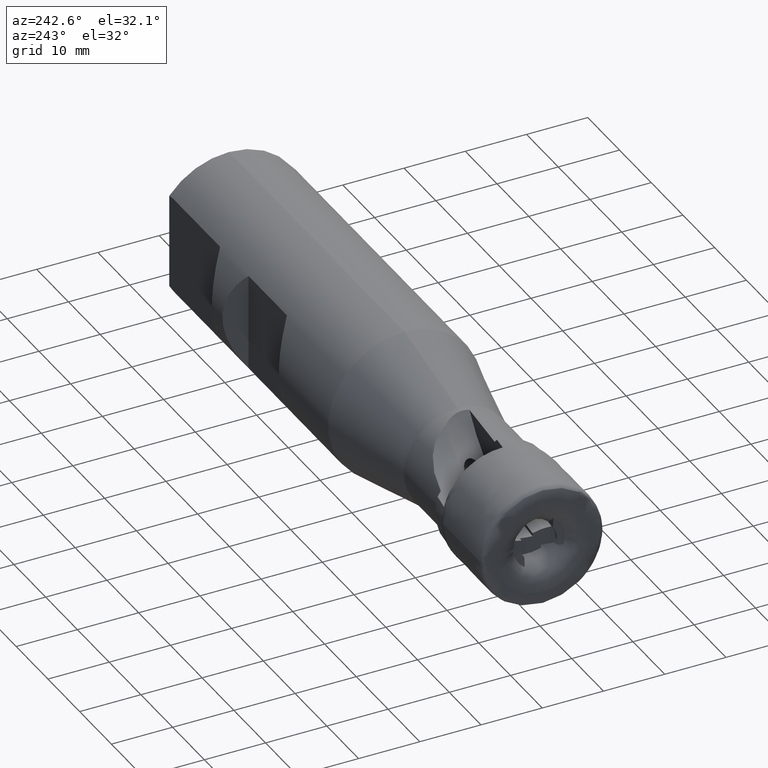
[diagram: clean part render]
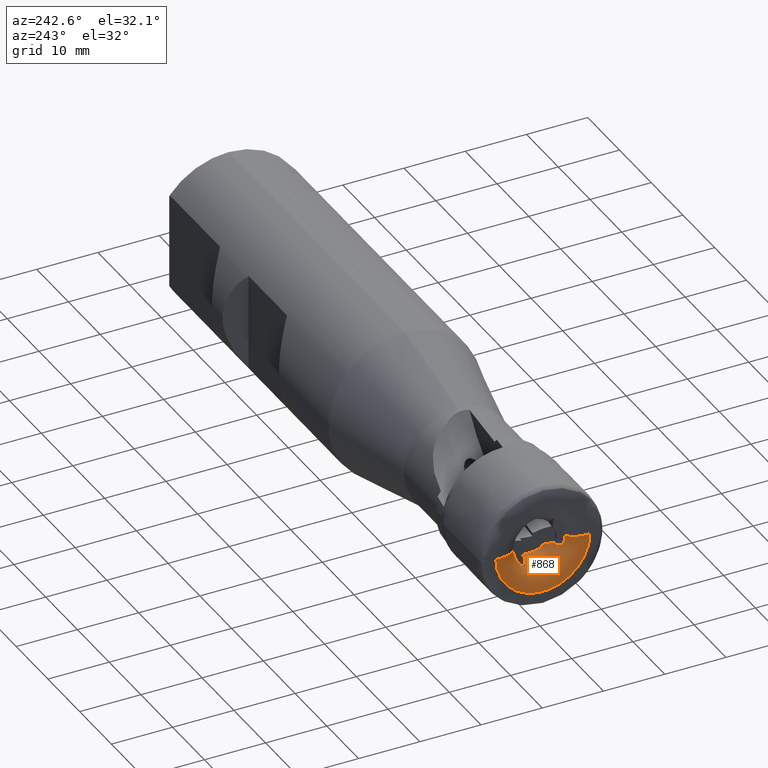
[diagram: same view with one face highlighted and labeled with its STEP entity id]
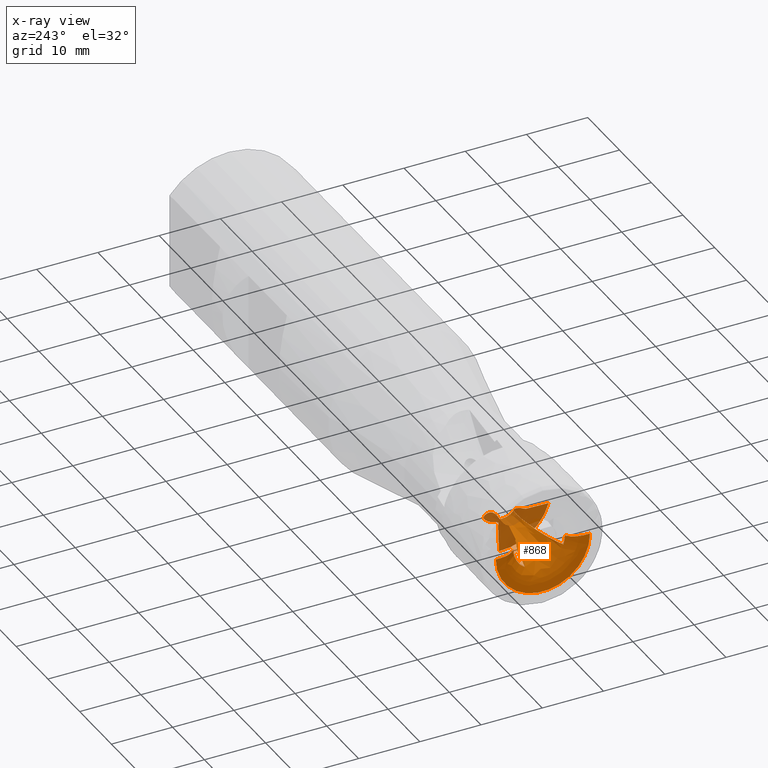
[diagram: x-ray of the same camera — body ghosted, the highlighted face saturated]
A machine part, auxiliary view. The second image highlights one B-rep face of the part: STEP entity #868.
The next image is the same camera in x-ray: the body ghosted, the highlighted face saturated — about 20% of this face is hidden behind the body in this view.
In plain terms, the highlighted face is a freeform B-spline surface patch.
Its self-contained STEP definition (entity closure, byte-faithful):
#24 = CIRCLE ( 'NONE', #679, 7.691889727590408100 ) ;
#43 = CIRCLE ( 'NONE', #684, 8.098316624820908400 ) ;
#50 = CARTESIAN_POINT ( 'NONE',  ( 12.63150438412009900, 0.3047643895715621600, -4.050989447764806100 ) ) ;
#53 = CARTESIAN_POINT ( 'NONE',  ( 12.60516006558198200, 0.3024595603511656100, -4.859684744965990800 ) ) ;
#61 = CARTESIAN_POINT ( 'NONE',  ( 12.48163906726140300, 0.2916528732907179800, -6.476588769452767700 ) ) ;
#66 = CARTESIAN_POINT ( 'NONE',  ( 12.60053920375176700, 0.3020552873252949600, -3.649286797864922200 ) ) ;
#70 = CARTESIAN_POINT ( 'NONE',  ( 12.35750454105840700, 0.2807925094958098100, -8.093447208851232600 ) ) ;
#72 = CARTESIAN_POINT ( 'NONE',  ( 12.51219689377972200, 0.2943263366930812300, -3.251698829178952800 ) ) ;
#79 = CARTESIAN_POINT ( 'NONE',  ( 12.56982024599009600, 0.2993677267658156300, -3.447239308890486200 ) ) ;
#85 = CARTESIAN_POINT ( 'NONE',  ( 12.61891691253534400, 0.3036631285054017200, -4.657150054951753000 ) ) ;
#97 = CARTESIAN_POINT ( 'NONE',  ( 12.41957827896072100, 0.2862232578649364100, -7.285018525724049200 ) ) ;
#186 = CARTESIAN_POINT ( 'NONE',  ( 12.63201546511686300, 0.3048091033648802600, -4.252755425170054300 ) ) ;
#283 = CARTESIAN_POINT ( 'NONE',  ( 12.55916270398585700, 0.2984353126594029300, -5.466047632928298800 ) ) ;
#306 = CARTESIAN_POINT ( 'NONE',  ( 12.57495076858339900, 0.2998165893307044300, -5.263960351382825000 ) ) ;
#356 = EDGE_LOOP ( 'NONE', ( #1207, #536, #1224, #1213, #1209, #1295, #1232, #1270, #1206, #1283, #1277, #1236, #1301, #1249 ) ) ;
#446 =( BOUNDED_SURFACE ( )  B_SPLINE_SURFACE ( 3, 3, ( 
 ( #2949, #2810, #2803, #2802 ),
 ( #2801, #2793, #2792, #2798 ),
 ( #2790, #2789, #2788, #2780 ),
 ( #2786, #2785, #2777, #2776 ),
 ( #2782, #2647, #2817, #2819 ),
 ( #2824, #2823, #2848, #2890 ),
 ( #2893, #2906, #2910, #2912 ),
 ( #2913, #2917, #2918, #2920 ),
 ( #2929, #2926, #2925, #2773 ) ),
 .UNSPECIFIED., .F., .F., .T. ) 
 B_SPLINE_SURFACE_WITH_KNOTS ( ( 4, 3, 1, 1, 4 ),
 ( 4, 4 ),
 ( 0.4999999999999844000, 0.5866323580774698300, 0.7244215720516465900, 0.8622107860258232400, 1.000000000000000000 ),
 ( 0.0000000000000000000, 1.000000000000000000 ),
 .UNSPECIFIED. ) 
 GEOMETRIC_REPRESENTATION_ITEM ( )  RATIONAL_B_SPLINE_SURFACE ( (
 ( 1.000000000000000000, 0.3333333333333334300, 0.3333333333333334300, 1.000000000000000000),
 ( 1.000000000000000000, 0.3333333333333334300, 0.3333333333333334300, 1.000000000000000000),
 ( 1.000000000000000000, 0.3333333333333334300, 0.3333333333333334300, 1.000000000000000000),
 ( 1.000000000000000000, 0.3333333333333334300, 0.3333333333333334300, 1.000000000000000000),
 ( 1.000000000000000000, 0.3333333333333334300, 0.3333333333333334300, 1.000000000000000000),
 ( 1.000000000000000000, 0.3333333333333334300, 0.3333333333333334300, 1.000000000000000000),
 ( 1.000000000000000000, 0.3333333333333334300, 0.3333333333333334300, 1.000000000000000000),
 ( 1.000000000000000000, 0.3333333333333334300, 0.3333333333333334300, 1.000000000000000000),
 ( 1.000000000000000000, 0.3333333333333334300, 0.3333333333333334300, 1.000000000000000000) ) ) 
 REPRESENTATION_ITEM ( '' )  SURFACE ( )  );
#456 = B_SPLINE_CURVE_WITH_KNOTS ( 'NONE', 3,
 ( #1453, #1497, #1487, #1456, #1471, #1468 ),
 .UNSPECIFIED., .F., .F.,
 ( 4, 2, 4 ),
 ( 0.0005938693669782327600, 0.001926518084082464400, 0.003259166801186696000 ),
 .UNSPECIFIED. ) ;
#462 = B_SPLINE_CURVE_WITH_KNOTS ( 'NONE', 3,
 ( #2267, #2255, #2289, #2219, #2230, #2309, #2365, #2221, #2224, #2174, #2168, #2142, #2284, #2264, #2182, #2374, #2245, #2330, #2299, #2318 ),
 .UNSPECIFIED., .F., .F.,
 ( 4, 2, 2, 2, 2, 2, 2, 2, 2, 4 ),
 ( 9.697399036122160600E-019, 0.0007244383642552741600, 0.001448876728510547000, 0.001811095910638184200, 0.002173315092765821800, 0.002897753457021094900, 0.003259972639148729000, 0.003622191821276363200, 0.004346630185531630600, 0.005795506914042167200 ),
 .UNSPECIFIED. ) ;
#466 = B_SPLINE_CURVE_WITH_KNOTS ( 'NONE', 3,
 ( #2353, #2333, #2138, #2268 ),
 .UNSPECIFIED., .F., .F.,
 ( 4, 4 ),
 ( 0.8894201429057745400, 1.000000000000000000 ),
 .UNSPECIFIED. ) ;
#475 = B_SPLINE_CURVE_WITH_KNOTS ( 'NONE', 3,
 ( #70, #97, #61, #283, #306, #53, #85, #186, #50, #66, #79, #72 ),
 .UNSPECIFIED., .F., .F.,
 ( 4, 2, 2, 2, 2, 4 ),
 ( 0.001571928177692240300, 0.004003785974425230800, 0.004611750423608479400, 0.005219714872791728900, 0.005827679321974977600, 0.006435643771158226300 ),
 .UNSPECIFIED. ) ;
#498 = B_SPLINE_CURVE_WITH_KNOTS ( 'NONE', 3,
 ( #1706, #1576, #1693, #1703 ),
 .UNSPECIFIED., .F., .F.,
 ( 4, 4 ),
 ( 0.8894201429057745400, 1.000000000000000000 ),
 .UNSPECIFIED. ) ;
#536 = ORIENTED_EDGE ( 'NONE', *, *, #1318, .T. ) ;
#632 = VERTEX_POINT ( 'NONE', #2615 ) ;
#644 = AXIS2_PLACEMENT_3D ( 'NONE', #1385, #1715, #1370 ) ;
#651 = AXIS2_PLACEMENT_3D ( 'NONE', #1633, #1641, #1637 ) ;
#679 = AXIS2_PLACEMENT_3D ( 'NONE', #3213, #3200, #3171 ) ;
#684 = AXIS2_PLACEMENT_3D ( 'NONE', #970, #968, #980 ) ;
#868 = ADVANCED_FACE ( 'NONE', ( #881 ), #446, .T. ) ;
#881 = FACE_OUTER_BOUND ( 'NONE', #356, .T. ) ;
#911 = CIRCLE ( 'NONE', #644, 4.210217411399218800 ) ;
#968 = DIRECTION ( 'NONE',  ( -1.000000000000000000, -0.0000000000000000000, -0.0000000000000000000 ) ) ;
#969 = CARTESIAN_POINT ( 'NONE',  ( 7.384632379226665900, -1.581969470210173600, -1.017467082909026400 ) ) ;
#970 = CARTESIAN_POINT ( 'NONE',  ( 12.35750454105840400, 0.0000000000000000000, 0.0000000000000000000 ) ) ;
#980 = DIRECTION ( 'NONE',  ( 0.0000000000000000000, -1.000000000000000000, 0.0000000000000000000 ) ) ;
#982 = CARTESIAN_POINT ( 'NONE',  ( 5.898183621017731900, -1.834008517767833800, -1.035691400926223500 ) ) ;
#984 = CARTESIAN_POINT ( 'NONE',  ( 0.3181918467754043500, 2.339330628486634600, -3.500494659598201600 ) ) ;
#985 = CARTESIAN_POINT ( 'NONE',  ( 1.935181347792122000, -3.008785598751591500, -1.199969699177090700 ) ) ;
#991 = CARTESIAN_POINT ( 'NONE',  ( 0.6045002155625467400, -3.720005743110065900, -1.361863652185894000 ) ) ;
#993 = CARTESIAN_POINT ( 'NONE',  ( 3.700769070778301600, -2.375823589630735800, -1.095773799559198700 ) ) ;
#996 = CARTESIAN_POINT ( 'NONE',  ( 1.590923102424235600, -3.159927447999475900, -1.229545600667154600 ) ) ;
#1003 = CARTESIAN_POINT ( 'NONE',  ( 8.889052101954995100, -1.452723564867003600, -1.017997851424185900 ) ) ;
#1010 = CARTESIAN_POINT ( 'NONE',  ( 8.889052101954995100, -1.452723564867003600, -1.017997851424185900 ) ) ;
#1013 = CARTESIAN_POINT ( 'NONE',  ( 8.132454445774842000, -1.487345903987078200, -1.013471060071315300 ) ) ;
#1017 = CARTESIAN_POINT ( 'NONE',  ( 2.982736231926859500, -2.596327502654225000, -1.125749563461409900 ) ) ;
#1018 = CARTESIAN_POINT ( 'NONE',  ( 0.9223934676221436900, -3.517181233906589100, -1.310945592651565800 ) ) ;
#1034 = CARTESIAN_POINT ( 'NONE',  ( 5.157760510560522400, -1.993807458330515200, -1.050297334160977600 ) ) ;
#1057 = CARTESIAN_POINT ( 'NONE',  ( 12.60916826578095300, -4.214379036515368600, -2.291082953356612200 ) ) ;
#1060 = CARTESIAN_POINT ( 'NONE',  ( -0.9000000000000127900, 7.691889727590409900, 1.083315806288077500E-015 ) ) ;
#1073 = CARTESIAN_POINT ( 'NONE',  ( 0.3181918467756849600, 4.210217411399218800, 5.156029276583444000E-016 ) ) ;
#1098 = CARTESIAN_POINT ( 'NONE',  ( 8.867872609896565500, 0.5123365115192871600, -1.699073271127900600 ) ) ;
#1117 = CARTESIAN_POINT ( 'NONE',  ( 12.35750454105836800, -7.793913043053112900, -2.199466215513584000 ) ) ;
#1128 = CARTESIAN_POINT ( 'NONE',  ( 0.3181918467756849600, -4.210217411399218800, 0.0000000000000000000 ) ) ;
#1133 = CARTESIAN_POINT ( 'NONE',  ( -0.9000000000000130100, -7.691889727590408100, 0.0000000000000000000 ) ) ;
#1175 = CARTESIAN_POINT ( 'NONE',  ( 12.35750454105840700, 0.2807925094958098100, -8.093447208851232600 ) ) ;
#1180 = CARTESIAN_POINT ( 'NONE',  ( 5.443635721345316400, 1.231828114857688800, -1.829085718615560000 ) ) ;
#1186 = CARTESIAN_POINT ( 'NONE',  ( 12.51219689377972200, 0.2943263366930812300, -3.251698829178952800 ) ) ;
#1195 = CARTESIAN_POINT ( 'NONE',  ( 0.3181918467756865200, -3.958794370696016300, -1.433135646683431500 ) ) ;
#1200 = CARTESIAN_POINT ( 'NONE',  ( 2.347293246295386800, 2.516853998089210200, -1.772009601427061400 ) ) ;
#1206 = ORIENTED_EDGE ( 'NONE', *, *, #1858, .F. ) ;
#1207 = ORIENTED_EDGE ( 'NONE', *, *, #1361, .T. ) ;
#1209 = ORIENTED_EDGE ( 'NONE', *, *, #1319, .T. ) ;
#1213 = ORIENTED_EDGE ( 'NONE', *, *, #1513, .F. ) ;
#1224 = ORIENTED_EDGE ( 'NONE', *, *, #1831, .T. ) ;
#1232 = ORIENTED_EDGE ( 'NONE', *, *, #1530, .F. ) ;
#1236 = ORIENTED_EDGE ( 'NONE', *, *, #1821, .T. ) ;
#1249 = ORIENTED_EDGE ( 'NONE', *, *, #1356, .F. ) ;
#1270 = ORIENTED_EDGE ( 'NONE', *, *, #1788, .F. ) ;
#1277 = ORIENTED_EDGE ( 'NONE', *, *, #1823, .F. ) ;
#1283 = ORIENTED_EDGE ( 'NONE', *, *, #1682, .T. ) ;
#1295 = ORIENTED_EDGE ( 'NONE', *, *, #1848, .T. ) ;
#1301 = ORIENTED_EDGE ( 'NONE', *, *, #1820, .F. ) ;
#1318 = EDGE_CURVE ( 'NONE', #1974, #1947, #498, .T. ) ;
#1319 = EDGE_CURVE ( 'NONE', #1938, #632, #911, .T. ) ;
#1356 = EDGE_CURVE ( 'NONE', #2003, #1871, #456, .T. ) ;
#1361 = EDGE_CURVE ( 'NONE', #2003, #1974, #2072, .T. ) ;
#1370 = DIRECTION ( 'NONE',  ( 0.0000000000000000000, 0.0000000000000000000, 1.000000000000000000 ) ) ;
#1385 = CARTESIAN_POINT ( 'NONE',  ( 0.3181918467756849600, 0.0000000000000000000, 0.0000000000000000000 ) ) ;
#1453 = CARTESIAN_POINT ( 'NONE',  ( 0.3181918467754043500, 2.339330628486634600, -3.500494659598201600 ) ) ;
#1456 = CARTESIAN_POINT ( 'NONE',  ( 1.639215418102388100, 2.454905215228265500, -2.314711260717254000 ) ) ;
#1468 = CARTESIAN_POINT ( 'NONE',  ( 2.347293246295386800, 2.516853998089210200, -1.772009601427061400 ) ) ;
#1471 = CARTESIAN_POINT ( 'NONE',  ( 1.997987690826629200, 2.486293721879069300, -2.049060303985269700 ) ) ;
#1487 = CARTESIAN_POINT ( 'NONE',  ( 0.9484153359490080600, 2.394468039277072500, -2.876723156077689600 ) ) ;
#1497 = CARTESIAN_POINT ( 'NONE',  ( 0.6164074482322768900, 2.365421112900674100, -3.171382795774014200 ) ) ;
#1513 = EDGE_CURVE ( 'NONE', #1938, #1941, #466, .T. ) ;
#1530 = EDGE_CURVE ( 'NONE', #1950, #1993, #462, .T. ) ;
#1576 = CARTESIAN_POINT ( 'NONE',  ( -0.8770546920445750900, 5.248834214089596300, 6.427968019539935700E-016 ) ) ;
#1633 = CARTESIAN_POINT ( 'NONE',  ( 0.3181918467756849600, 0.0000000000000000000, 0.0000000000000000000 ) ) ;
#1637 = DIRECTION ( 'NONE',  ( 0.0000000000000000000, 0.0000000000000000000, 1.000000000000000000 ) ) ;
#1641 = DIRECTION ( 'NONE',  ( 1.000000000000000000, 0.0000000000000000000, 0.0000000000000000000 ) ) ;
#1682 = EDGE_CURVE ( 'NONE', #1898, #1887, #475, .T. ) ;
#1693 = CARTESIAN_POINT ( 'NONE',  ( -0.8885273460222940000, 6.470361970840000900, 7.923908076913968800E-016 ) ) ;
#1703 = CARTESIAN_POINT ( 'NONE',  ( -0.9000000000000127900, 7.691889727590409900, 1.083315806288077500E-015 ) ) ;
#1706 = CARTESIAN_POINT ( 'NONE',  ( 0.3181918467756849600, 4.210217411399218800, 5.156029276583444000E-016 ) ) ;
#1715 = DIRECTION ( 'NONE',  ( 1.000000000000000000, 0.0000000000000000000, 0.0000000000000000000 ) ) ;
#1788 = EDGE_CURVE ( 'NONE', #1948, #1950, #2967, .T. ) ;
#1820 = EDGE_CURVE ( 'NONE', #1871, #1895, #2999, .T. ) ;
#1821 = EDGE_CURVE ( 'NONE', #1973, #1895, #2983, .T. ) ;
#1823 = EDGE_CURVE ( 'NONE', #1973, #1887, #3003, .T. ) ;
#1831 = EDGE_CURVE ( 'NONE', #1947, #1941, #24, .T. ) ;
#1848 = EDGE_CURVE ( 'NONE', #632, #1993, #2984, .T. ) ;
#1858 = EDGE_CURVE ( 'NONE', #1898, #1948, #43, .T. ) ;
#1871 = VERTEX_POINT ( 'NONE', #1200 ) ;
#1887 = VERTEX_POINT ( 'NONE', #1186 ) ;
#1895 = VERTEX_POINT ( 'NONE', #1180 ) ;
#1898 = VERTEX_POINT ( 'NONE', #1175 ) ;
#1938 = VERTEX_POINT ( 'NONE', #1128 ) ;
#1941 = VERTEX_POINT ( 'NONE', #1133 ) ;
#1947 = VERTEX_POINT ( 'NONE', #1060 ) ;
#1948 = VERTEX_POINT ( 'NONE', #1117 ) ;
#1950 = VERTEX_POINT ( 'NONE', #1057 ) ;
#1973 = VERTEX_POINT ( 'NONE', #1098 ) ;
#1974 = VERTEX_POINT ( 'NONE', #1073 ) ;
#1993 = VERTEX_POINT ( 'NONE', #1003 ) ;
#2003 = VERTEX_POINT ( 'NONE', #984 ) ;
#2072 = CIRCLE ( 'NONE', #651, 4.210217411399218800 ) ;
#2138 = CARTESIAN_POINT ( 'NONE',  ( -0.8885273460222940000, -6.470361970840000900, 0.0000000000000000000 ) ) ;
#2142 = CARTESIAN_POINT ( 'NONE',  ( 11.61781441983738400, -1.746738921919192700, -1.284518160805932800 ) ) ;
#2168 = CARTESIAN_POINT ( 'NONE',  ( 11.92744849018349400, -1.919190032767716700, -1.365895304765784900 ) ) ;
#2174 = CARTESIAN_POINT ( 'NONE',  ( 12.11120007477914700, -2.074402136810824500, -1.430458424049142500 ) ) ;
#2182 = CARTESIAN_POINT ( 'NONE',  ( 11.16871017065589000, -1.583969919835212600, -1.194164906570404100 ) ) ;
#2219 = CARTESIAN_POINT ( 'NONE',  ( 12.62011916880243600, -3.328143474946100500, -1.905198170040280500 ) ) ;
#2221 = CARTESIAN_POINT ( 'NONE',  ( 12.37664408432248000, -2.452124258530768800, -1.575178981686853600 ) ) ;
#2224 = CARTESIAN_POINT ( 'NONE',  ( 12.31754927691522800, -2.351037346021852800, -1.537200924355037100 ) ) ;
#2230 = CARTESIAN_POINT ( 'NONE',  ( 12.59618053598197900, -3.100454690584625500, -1.817578420865452600 ) ) ;
#2245 = CARTESIAN_POINT ( 'NONE',  ( 10.58019003085561700, -1.473230738299498500, -1.110482580897618000 ) ) ;
#2255 = CARTESIAN_POINT ( 'NONE',  ( 12.62436363232116000, -3.995911501530622800, -2.186447459446199100 ) ) ;
#2264 = CARTESIAN_POINT ( 'NONE',  ( 11.28325172159801100, -1.616630172331461600, -1.214351523308845100 ) ) ;
#2267 = CARTESIAN_POINT ( 'NONE',  ( 12.60916826578095300, -4.214379036515368600, -2.291082953356612200 ) ) ;
#2268 = CARTESIAN_POINT ( 'NONE',  ( -0.9000000000000130100, -7.691889727590408100, 0.0000000000000000000 ) ) ;
#2284 = CARTESIAN_POINT ( 'NONE',  ( 11.50793555404965000, -1.697954574427071700, -1.259523952456381500 ) ) ;
#2289 = CARTESIAN_POINT ( 'NONE',  ( 12.63411884968600200, -3.774493166801028600, -2.089167055818343500 ) ) ;
#2299 = CARTESIAN_POINT ( 'NONE',  ( 9.373812626721427700, -1.430540647508751200, -1.020898216940526300 ) ) ;
#2309 = CARTESIAN_POINT ( 'NONE',  ( 12.50970714366677300, -2.769526214176968100, -1.693356982216295500 ) ) ;
#2318 = CARTESIAN_POINT ( 'NONE',  ( 8.889052101954995100, -1.452723564867003600, -1.017997851424185900 ) ) ;
#2330 = CARTESIAN_POINT ( 'NONE',  ( 9.857437975456424100, -1.420523659661966100, -1.042378184554933600 ) ) ;
#2333 = CARTESIAN_POINT ( 'NONE',  ( -0.8770546920445750900, -5.248834214089596300, 0.0000000000000000000 ) ) ;
#2353 = CARTESIAN_POINT ( 'NONE',  ( 0.3181918467756849600, -4.210217411399218800, 0.0000000000000000000 ) ) ;
#2365 = CARTESIAN_POINT ( 'NONE',  ( 12.47256738453451200, -2.661528996362074300, -1.653300527599332400 ) ) ;
#2374 = CARTESIAN_POINT ( 'NONE',  ( 10.82017278694364000, -1.503564103033474300, -1.139401868388064500 ) ) ;
#2615 = CARTESIAN_POINT ( 'NONE',  ( 0.3181918467756865200, -3.958794370696016300, -1.433135646683431500 ) ) ;
#2647 = CARTESIAN_POINT ( 'NONE',  ( 12.69412237501588200, 3.717969846964118900, -7.435939693928234300 ) ) ;
#2773 = CARTESIAN_POINT ( 'NONE',  ( -0.9000000000000130100, -7.691889727590409000, -1.883969626857600400E-015 ) ) ;
#2776 = CARTESIAN_POINT ( 'NONE',  ( 12.57749198536916800, -5.235659939265392600, -1.282366837209077900E-015 ) ) ;
#2777 = CARTESIAN_POINT ( 'NONE',  ( 12.57749198536916800, -5.235659939265390900, -10.47131987853078700 ) ) ;
#2780 = CARTESIAN_POINT ( 'NONE',  ( 12.50416283726556400, -6.189878834450737200, -1.516083060344008600E-015 ) ) ;
#2782 = CARTESIAN_POINT ( 'NONE',  ( 12.69412237501588200, 3.717969846964118500, 4.553199872410981900E-016 ) ) ;
#2785 = CARTESIAN_POINT ( 'NONE',  ( 12.57749198536916800, 5.235659939265393500, -10.47131987853078500 ) ) ;
#2786 = CARTESIAN_POINT ( 'NONE',  ( 12.57749198536916800, 5.235659939265392600, 6.411834186045389500E-016 ) ) ;
#2788 = CARTESIAN_POINT ( 'NONE',  ( 12.50416283726556800, -6.189878834450735400, -12.37975766890147400 ) ) ;
#2789 = CARTESIAN_POINT ( 'NONE',  ( 12.50416283726556800, 6.189878834450738100, -12.37975766890147100 ) ) ;
#2790 = CARTESIAN_POINT ( 'NONE',  ( 12.50416283726556400, 6.189878834450737200, 7.580415301720043200E-016 ) ) ;
#2792 = CARTESIAN_POINT ( 'NONE',  ( 12.43083368916196600, -7.144097729636077300, -14.28819545927216000 ) ) ;
#2793 = CARTESIAN_POINT ( 'NONE',  ( 12.43083368916196600, 7.144097729636082600, -14.28819545927215600 ) ) ;
#2798 = CARTESIAN_POINT ( 'NONE',  ( 12.43083368916196600, -7.144097729636080800, -1.749799283478940000E-015 ) ) ;
#2801 = CARTESIAN_POINT ( 'NONE',  ( 12.43083368916196600, 7.144097729636080800, 8.748996417394699900E-016 ) ) ;
#2802 = CARTESIAN_POINT ( 'NONE',  ( 12.35750454105836800, -8.098316624821425300, -1.983515506613870900E-015 ) ) ;
#2803 = CARTESIAN_POINT ( 'NONE',  ( 12.35750454105836800, -8.098316624821421800, -16.19663324964285100 ) ) ;
#2810 = CARTESIAN_POINT ( 'NONE',  ( 12.35750454105836800, 8.098316624821427100, -16.19663324964284700 ) ) ;
#2817 = CARTESIAN_POINT ( 'NONE',  ( 12.69412237501588200, -3.717969846964116300, -7.435939693928235200 ) ) ;
#2819 = CARTESIAN_POINT ( 'NONE',  ( 12.69412237501588200, -3.717969846964118500, -9.106399744821963800E-016 ) ) ;
#2823 = CARTESIAN_POINT ( 'NONE',  ( 12.92738315430931500, 0.6825896623615754800, -1.365179324723150300 ) ) ;
#2824 = CARTESIAN_POINT ( 'NONE',  ( 12.92738315430931500, 0.6825896623615752600, 8.359312451421756700E-017 ) ) ;
#2848 = CARTESIAN_POINT ( 'NONE',  ( 12.92738315430931500, -0.6825896623615749200, -1.365179324723150500 ) ) ;
#2890 = CARTESIAN_POINT ( 'NONE',  ( 12.92738315430931500, -0.6825896623615752600, -1.671862490284351300E-016 ) ) ;
#2893 = CARTESIAN_POINT ( 'NONE',  ( -0.8571131303116051900, 3.125596538039871100, 3.827751795736576200E-016 ) ) ;
#2906 = CARTESIAN_POINT ( 'NONE',  ( -0.8571131303116050800, 3.125596538039872000, -6.251193076079740500 ) ) ;
#2910 = CARTESIAN_POINT ( 'NONE',  ( -0.8571131303116050800, -3.125596538039869400, -6.251193076079741400 ) ) ;
#2912 = CARTESIAN_POINT ( 'NONE',  ( -0.8571131303116051900, -3.125596538039871100, -7.655503591473152400E-016 ) ) ;
#2913 = CARTESIAN_POINT ( 'NONE',  ( -0.8857043767705438100, 6.169791997740228200, 7.555816021437523400E-016 ) ) ;
#2917 = CARTESIAN_POINT ( 'NONE',  ( -0.8857043767705438100, 6.169791997740230000, -12.33958399548045500 ) ) ;
#2918 = CARTESIAN_POINT ( 'NONE',  ( -0.8857043767705438100, -6.169791997740226500, -12.33958399548045500 ) ) ;
#2920 = CARTESIAN_POINT ( 'NONE',  ( -0.8857043767705438100, -6.169791997740228200, -1.511163204287504700E-015 ) ) ;
#2925 = CARTESIAN_POINT ( 'NONE',  ( -0.9000000000000130100, -7.691889727590406300, -15.38377945518081800 ) ) ;
#2926 = CARTESIAN_POINT ( 'NONE',  ( -0.9000000000000130100, 7.691889727590410800, -15.38377945518081600 ) ) ;
#2929 = CARTESIAN_POINT ( 'NONE',  ( -0.9000000000000130100, 7.691889727590409000, 9.419848134288001900E-016 ) ) ;
#2949 = CARTESIAN_POINT ( 'NONE',  ( 12.35750454105836800, 8.098316624821425300, 9.917577533069354600E-016 ) ) ;
#2967 = B_SPLINE_CURVE_WITH_KNOTS ( 'NONE', 3,
 ( #3138, #3154, #3192, #3191, #3203, #3196, #3195, #3205 ),
 .UNSPECIFIED., .F., .F.,
 ( 4, 2, 2, 4 ),
 ( 0.001711809281691077000, 0.003481850491442643800, 0.004366871096318425900, 0.005251891701194208500 ),
 .UNSPECIFIED. ) ;
#2983 = B_SPLINE_CURVE_WITH_KNOTS ( 'NONE', 3,
 ( #3202, #3118, #3050, #3051, #3058, #3059, #3055, #3066 ),
 .UNSPECIFIED., .F., .F.,
 ( 4, 2, 2, 4 ),
 ( 0.0002632550930423316500, 0.001138515210639423500, 0.002013775328236512800, 0.003764295563430691800 ),
 .UNSPECIFIED. ) ;
#2984 = B_SPLINE_CURVE_WITH_KNOTS ( 'NONE', 3,
 ( #1195, #991, #1018, #996, #985, #1017, #993, #1034, #982, #969, #1013, #1010 ),
 .UNSPECIFIED., .F., .F.,
 ( 4, 2, 2, 2, 2, 4 ),
 ( 0.0003430605235906119600, 0.001478685154098882900, 0.002614309784607154000, 0.004885559045623696000, 0.007156808306640238100, 0.009428057567656781100 ),
 .UNSPECIFIED. ) ;
#2999 = B_SPLINE_CURVE_WITH_KNOTS ( 'NONE', 3,
 ( #3025, #3031, #3043, #3048 ),
 .UNSPECIFIED., .F., .F.,
 ( 4, 4 ),
 ( 0.001160802646552146300, 0.004513029725890738100 ),
 .UNSPECIFIED. ) ;
#3003 = B_SPLINE_CURVE_WITH_KNOTS ( 'NONE', 3,
 ( #3067, #3072, #3085, #3080, #3081, #3092, #3087, #3088, #3100, #3094, #3090, #3102, #3103, #3104, #3113, #3111, #3106, #3039, #3038, #3109, #3119, #3035, #3034, #3243, #3246, #3257, #3112, #3008, #3011, #3042, #3041, #3013, #3098, #3107, #3022, #3084, #3086, #3096, #3070, #3071 ),
 .UNSPECIFIED., .F., .F.,
 ( 4, 2, 2, 2, 2, 2, 2, 2, 2, 2, 2, 2, 2, 2, 2, 2, 2, 2, 2, 4 ),
 ( 0.002356413581879394800, 0.002903660433422120900, 0.003450907284964846900, 0.003724530710736210500, 0.003998154136507573800, 0.004545400988050300200, 0.005092647839593026700, 0.005639894691135752300, 0.006187141542678478700, 0.006734388394221205200, 0.007281635245763931600, 0.007555258671535293100, 0.007828882097306658100, 0.008102505523078019600, 0.008376128948849382800, 0.008649752374620744300, 0.008923375800392107500, 0.009470622651934830500, 0.01001786950347755700, 0.01111236320656300500 ),
 .UNSPECIFIED. ) ;
#3008 = CARTESIAN_POINT ( 'NONE',  ( 12.51990049852320800, 2.734525138494722000, -1.831161119195315400 ) ) ;
#3011 = CARTESIAN_POINT ( 'NONE',  ( 12.52589919002028800, 2.701653839061543200, -1.920225967261415900 ) ) ;
#3013 = CARTESIAN_POINT ( 'NONE',  ( 12.52936042690723700, 2.421339525777259600, -2.282460959206208200 ) ) ;
#3022 = CARTESIAN_POINT ( 'NONE',  ( 12.51543725699527300, 1.985549021112309900, -2.611964209493185400 ) ) ;
#3025 = CARTESIAN_POINT ( 'NONE',  ( 2.347293246295386800, 2.516853998089210200, -1.772009601427061400 ) ) ;
#3031 = CARTESIAN_POINT ( 'NONE',  ( 3.353719789341322900, 2.029915131383015000, -1.790445562790675500 ) ) ;
#3034 = CARTESIAN_POINT ( 'NONE',  ( 12.31248482847249900, 2.551611861884720300, -1.166844475955016700 ) ) ;
#3035 = CARTESIAN_POINT ( 'NONE',  ( 12.26954205697393300, 2.509549766677323700, -1.097817758142540100 ) ) ;
#3038 = CARTESIAN_POINT ( 'NONE',  ( 11.74136811574736200, 2.160500769095111500, -0.5762756432072435600 ) ) ;
#3039 = CARTESIAN_POINT ( 'NONE',  ( 11.58951453152163000, 2.094619208761302300, -0.4893918934572631900 ) ) ;
#3041 = CARTESIAN_POINT ( 'NONE',  ( 12.53137298674646500, 2.549386973314445600, -2.150352619477145000 ) ) ;
#3042 = CARTESIAN_POINT ( 'NONE',  ( 12.53151210156956500, 2.608551171608510400, -2.078874754565460700 ) ) ;
#3043 = CARTESIAN_POINT ( 'NONE',  ( 4.402215950858564300, 1.638942722996690200, -1.809846825797462900 ) ) ;
#3048 = CARTESIAN_POINT ( 'NONE',  ( 5.443635721345316400, 1.231828114857688800, -1.829085718615560000 ) ) ;
#3050 = CARTESIAN_POINT ( 'NONE',  ( 8.285989327848504600, 0.5762697935958678300, -1.709946889676306400 ) ) ;
#3051 = CARTESIAN_POINT ( 'NONE',  ( 7.711043902960661900, 0.6750211158669555700, -1.727534509687610000 ) ) ;
#3055 = CARTESIAN_POINT ( 'NONE',  ( 6.005746317123945100, 1.071308360251126900, -1.799585934169538800 ) ) ;
#3058 = CARTESIAN_POINT ( 'NONE',  ( 7.425363356124681700, 0.7333908644753095500, -1.738062659595873500 ) ) ;
#3059 = CARTESIAN_POINT ( 'NONE',  ( 6.571422566063209700, 0.9240619088484567400, -1.772647908263297100 ) ) ;
#3066 = CARTESIAN_POINT ( 'NONE',  ( 5.443635721345316400, 1.231828114857688800, -1.829085718615560000 ) ) ;
#3067 = CARTESIAN_POINT ( 'NONE',  ( 8.867872609896565500, 0.5123365115192871600, -1.699073271127900600 ) ) ;
#3070 = CARTESIAN_POINT ( 'NONE',  ( 12.50332523698614300, 0.6547157761021029600, -3.188902760334608300 ) ) ;
#3071 = CARTESIAN_POINT ( 'NONE',  ( 12.51219689377972200, 0.2943263366930812300, -3.251698829178952800 ) ) ;
#3072 = CARTESIAN_POINT ( 'NONE',  ( 8.860843364324877000, 0.6875447058733091800, -1.646501834983681100 ) ) ;
#3080 = CARTESIAN_POINT ( 'NONE',  ( 8.938852010687014600, 1.151548728506389200, -1.359084392936126900 ) ) ;
#3081 = CARTESIAN_POINT ( 'NONE',  ( 8.994337943933798500, 1.280586752396539500, -1.233463344586291500 ) ) ;
#3084 = CARTESIAN_POINT ( 'NONE',  ( 12.50684161524228700, 1.666954485795368600, -2.792356634161138100 ) ) ;
#3085 = CARTESIAN_POINT ( 'NONE',  ( 8.872864302319973400, 0.8565411073111395300, -1.564355000347281900 ) ) ;
#3086 = CARTESIAN_POINT ( 'NONE',  ( 12.50358452450673300, 1.503593552643085700, -2.871737857481328600 ) ) ;
#3087 = CARTESIAN_POINT ( 'NONE',  ( 9.165203379468630700, 1.476579340293723300, -0.9736071750995508600 ) ) ;
#3088 = CARTESIAN_POINT ( 'NONE',  ( 9.273513068800832900, 1.552018271733517100, -0.8460196471381954400 ) ) ;
#3090 = CARTESIAN_POINT ( 'NONE',  ( 9.686357202453070400, 1.696091703924870600, -0.5118789734545626800 ) ) ;
#3092 = CARTESIAN_POINT ( 'NONE',  ( 9.116916089233637200, 1.431974869945789900, -1.040060695612414800 ) ) ;
#3094 = CARTESIAN_POINT ( 'NONE',  ( 9.532701487726866300, 1.663089808117094400, -0.6102050367611237000 ) ) ;
#3096 = CARTESIAN_POINT ( 'NONE',  ( 12.49892076099240300, 1.003285925404713100, -3.082679561339630100 ) ) ;
#3098 = CARTESIAN_POINT ( 'NONE',  ( 12.52739992060790500, 2.352782531322157800, -2.342561922209035700 ) ) ;
#3100 = CARTESIAN_POINT ( 'NONE',  ( 9.333649499252249600, 1.583296436519089100, -0.7844881438643341900 ) ) ;
#3102 = CARTESIAN_POINT ( 'NONE',  ( 10.02103099342563700, 1.750890655853990100, -0.3637486761611749600 ) ) ;
#3103 = CARTESIAN_POINT ( 'NONE',  ( 10.19637525673140700, 1.772129945793738300, -0.3154528886461701600 ) ) ;
#3104 = CARTESIAN_POINT ( 'NONE',  ( 10.55888368921970200, 1.824509433193027200, -0.2667190076354580300 ) ) ;
#3106 = CARTESIAN_POINT ( 'NONE',  ( 11.26807653974943000, 1.981895067802504500, -0.3585788014346842900 ) ) ;
#3107 = CARTESIAN_POINT ( 'NONE',  ( 12.52080286882009300, 2.139096853853763100, -2.512375668592635500 ) ) ;
#3109 = CARTESIAN_POINT ( 'NONE',  ( 12.00726230525226700, 2.304537484777935000, -0.7803801461632595700 ) ) ;
#3111 = CARTESIAN_POINT ( 'NONE',  ( 11.09480055113079400, 1.933686137246720400, -0.3127959656085794700 ) ) ;
#3112 = CARTESIAN_POINT ( 'NONE',  ( 12.49367051648388100, 2.748536853129465400, -1.648291026045768200 ) ) ;
#3113 = CARTESIAN_POINT ( 'NONE',  ( 10.73941842657114300, 1.854782482870851500, -0.2671021636212338500 ) ) ;
#3118 = CARTESIAN_POINT ( 'NONE',  ( 8.575227946766130300, 0.5357564369387199900, -1.702862007711708900 ) ) ;
#3119 = CARTESIAN_POINT ( 'NONE',  ( 12.12472917084032500, 2.384859103411681100, -0.8995532007929709600 ) ) ;
#3138 = CARTESIAN_POINT ( 'NONE',  ( 12.35750454105836800, -7.793913043053112900, -2.199466215513584000 ) ) ;
#3154 = CARTESIAN_POINT ( 'NONE',  ( 12.40132423161395200, -7.197427756812465400, -2.213629258503535500 ) ) ;
#3171 = DIRECTION ( 'NONE',  ( -2.819078824275204300E-017, -1.000000000000000000, 0.0000000000000000000 ) ) ;
#3191 = CARTESIAN_POINT ( 'NONE',  ( 12.50851559709424300, -5.706112078902997100, -2.251519721760619300 ) ) ;
#3192 = CARTESIAN_POINT ( 'NONE',  ( 12.44472269445592400, -6.600929584000156500, -2.228447855113920200 ) ) ;
#3195 = CARTESIAN_POINT ( 'NONE',  ( 12.59291323292809000, -4.513008918845280900, -2.283583551356510800 ) ) ;
#3196 = CARTESIAN_POINT ( 'NONE',  ( 12.57096964759490700, -4.811216961657278200, -2.275241118653546400 ) ) ;
#3200 = DIRECTION ( 'NONE',  ( -1.000000000000000000, -0.0000000000000000000, -0.0000000000000000000 ) ) ;
#3202 = CARTESIAN_POINT ( 'NONE',  ( 8.867872609896565500, 0.5123365115192871600, -1.699073271127900600 ) ) ;
#3203 = CARTESIAN_POINT ( 'NONE',  ( 12.52955765184152900, -5.407827506600195700, -2.259349967640062100 ) ) ;
#3205 = CARTESIAN_POINT ( 'NONE',  ( 12.60916826578095300, -4.214379036515368600, -2.291082953356612200 ) ) ;
#3213 = CARTESIAN_POINT ( 'NONE',  ( -0.9000000000000127900, 0.0000000000000000000, 0.0000000000000000000 ) ) ;
#3243 = CARTESIAN_POINT ( 'NONE',  ( 12.38791597801392700, 2.632294220946158600, -1.313217850114029700 ) ) ;
#3246 = CARTESIAN_POINT ( 'NONE',  ( 12.42065585467620200, 2.671627208800254400, -1.391288621821118000 ) ) ;
#3257 = CARTESIAN_POINT ( 'NONE',  ( 12.47349965296610600, 2.730140392325340200, -1.557955326505706000 ) ) ;